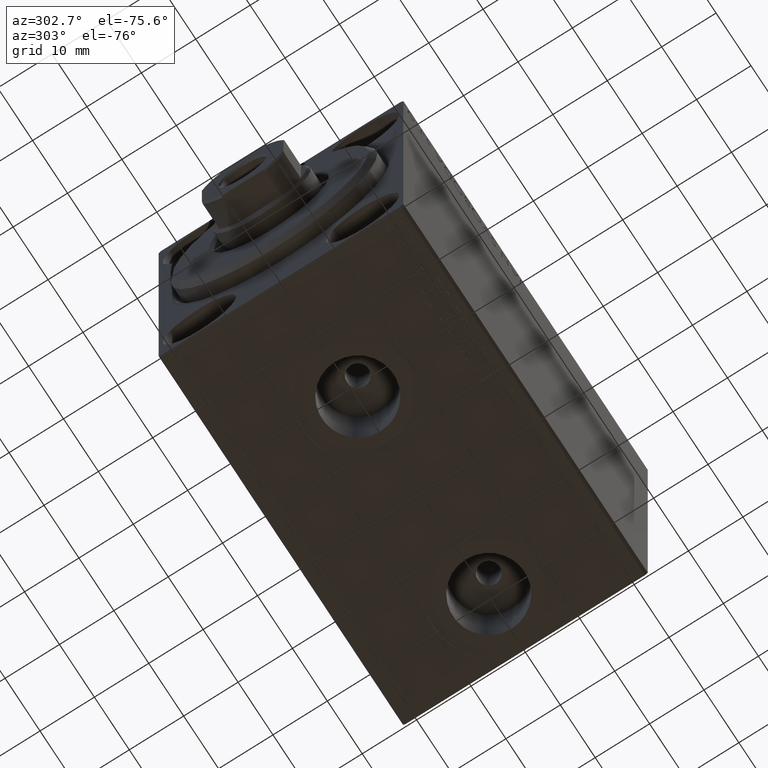
[diagram: clean part render]
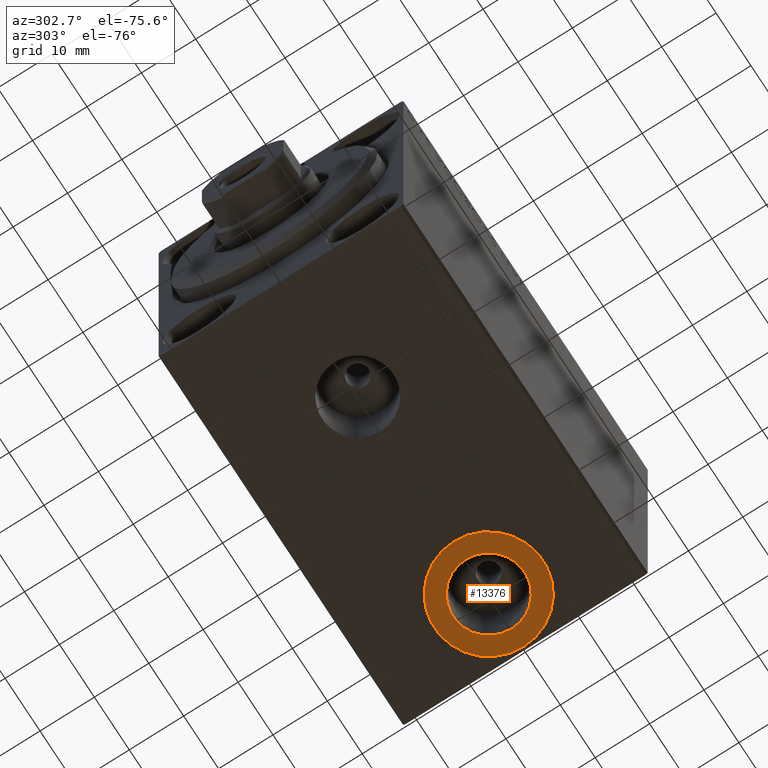
[diagram: same view with one face highlighted and labeled with its STEP entity id]
A machine part, auxiliary view. The second image highlights one B-rep face of the part: STEP entity #13376.
In plain terms, the highlighted planar face has unit normal (0, 0, -1).
Its self-contained STEP definition (entity closure, byte-faithful):
#869 = AXIS2_PLACEMENT_3D ( 'NONE', #37574, #20248, #7133 ) ;
#2802 = VERTEX_POINT ( 'NONE', #18076 ) ;
#3266 = AXIS2_PLACEMENT_3D ( 'NONE', #13706, #10162, #16179 ) ;
#3735 = AXIS2_PLACEMENT_3D ( 'NONE', #7960, #11954, #25501 ) ;
#4971 = DIRECTION ( 'NONE',  ( -1.000000000000000000, 0.000000000000000000, 0.000000000000000000 ) ) ;
#7133 = DIRECTION ( 'NONE',  ( -1.000000000000000000, 0.000000000000000000, -0.000000000000000000 ) ) ;
#7316 = ORIENTED_EDGE ( 'NONE', *, *, #33303, .T. ) ;
#7960 = CARTESIAN_POINT ( 'NONE',  ( 59.50000000000000711, -6.655964947265702476E-15, -32.40000000000000568 ) ) ;
#8426 = CARTESIAN_POINT ( 'NONE',  ( 49.50000000000000000, -6.655964947265702476E-15, -32.40000000000000568 ) ) ;
#10162 = DIRECTION ( 'NONE',  ( 0.000000000000000000, 0.000000000000000000, -1.000000000000000000 ) ) ;
#10960 = EDGE_LOOP ( 'NONE', ( #12353, #35047 ) ) ;
#11021 = CARTESIAN_POINT ( 'NONE',  ( 52.92000000000000171, -6.655964947265702476E-15, -32.40000000000000568 ) ) ;
#11954 = DIRECTION ( 'NONE',  ( 0.000000000000000000, 0.000000000000000000, -1.000000000000000000 ) ) ;
#12353 = ORIENTED_EDGE ( 'NONE', *, *, #40138, .F. ) ;
#13013 = VERTEX_POINT ( 'NONE', #11021 ) ;
#13376 = ADVANCED_FACE ( 'NONE', ( #24025, #38027 ), #30916, .T. ) ;
#13706 = CARTESIAN_POINT ( 'NONE',  ( 59.50000000000000711, -6.655964947265702476E-15, -32.40000000000000568 ) ) ;
#13768 = EDGE_CURVE ( 'NONE', #2802, #13013, #41380, .T. ) ;
#15865 = AXIS2_PLACEMENT_3D ( 'NONE', #38969, #31869, #4971 ) ;
#16179 = DIRECTION ( 'NONE',  ( -1.000000000000000000, 0.000000000000000000, 0.000000000000000000 ) ) ;
#18076 = CARTESIAN_POINT ( 'NONE',  ( 66.07999999999999829, -5.850147353426743435E-15, -32.40000000000000568 ) ) ;
#18264 = CARTESIAN_POINT ( 'NONE',  ( 69.50000000000000000, -5.431318148118349417E-15, -32.40000000000000568 ) ) ;
#20248 = DIRECTION ( 'NONE',  ( 0.000000000000000000, 0.000000000000000000, -1.000000000000000000 ) ) ;
#22063 = EDGE_CURVE ( 'NONE', #34817, #39737, #29925, .T. ) ;
#24025 = FACE_BOUND ( 'NONE', #10960, .T. ) ;
#24643 = DIRECTION ( 'NONE',  ( -1.000000000000000000, 0.000000000000000000, 0.000000000000000000 ) ) ;
#25501 = DIRECTION ( 'NONE',  ( -1.000000000000000000, 0.000000000000000000, 0.000000000000000000 ) ) ;
#26114 = EDGE_LOOP ( 'NONE', ( #36346, #7316 ) ) ;
#27404 = CIRCLE ( 'NONE', #3266, 6.580000000000002736 ) ;
#29925 = CIRCLE ( 'NONE', #41992, 10.00000000000000178 ) ;
#30916 = PLANE ( 'NONE',  #869 ) ;
#31869 = DIRECTION ( 'NONE',  ( 0.000000000000000000, 0.000000000000000000, -1.000000000000000000 ) ) ;
#33303 = EDGE_CURVE ( 'NONE', #39737, #34817, #33626, .T. ) ;
#33626 = CIRCLE ( 'NONE', #15865, 10.00000000000000178 ) ;
#34817 = VERTEX_POINT ( 'NONE', #8426 ) ;
#35047 = ORIENTED_EDGE ( 'NONE', *, *, #13768, .F. ) ;
#36346 = ORIENTED_EDGE ( 'NONE', *, *, #22063, .T. ) ;
#37574 = CARTESIAN_POINT ( 'NONE',  ( 59.50000000000000711, -6.655964947265702476E-15, -32.40000000000000568 ) ) ;
#38027 = FACE_OUTER_BOUND ( 'NONE', #26114, .T. ) ;
#38969 = CARTESIAN_POINT ( 'NONE',  ( 59.50000000000000711, -6.655964947265702476E-15, -32.40000000000000568 ) ) ;
#39737 = VERTEX_POINT ( 'NONE', #18264 ) ;
#40138 = EDGE_CURVE ( 'NONE', #13013, #2802, #27404, .T. ) ;
#41322 = CARTESIAN_POINT ( 'NONE',  ( 59.50000000000000711, -6.655964947265702476E-15, -32.40000000000000568 ) ) ;
#41380 = CIRCLE ( 'NONE', #3735, 6.580000000000002736 ) ;
#41552 = DIRECTION ( 'NONE',  ( 0.000000000000000000, 0.000000000000000000, -1.000000000000000000 ) ) ;
#41992 = AXIS2_PLACEMENT_3D ( 'NONE', #41322, #41552, #24643 ) ;